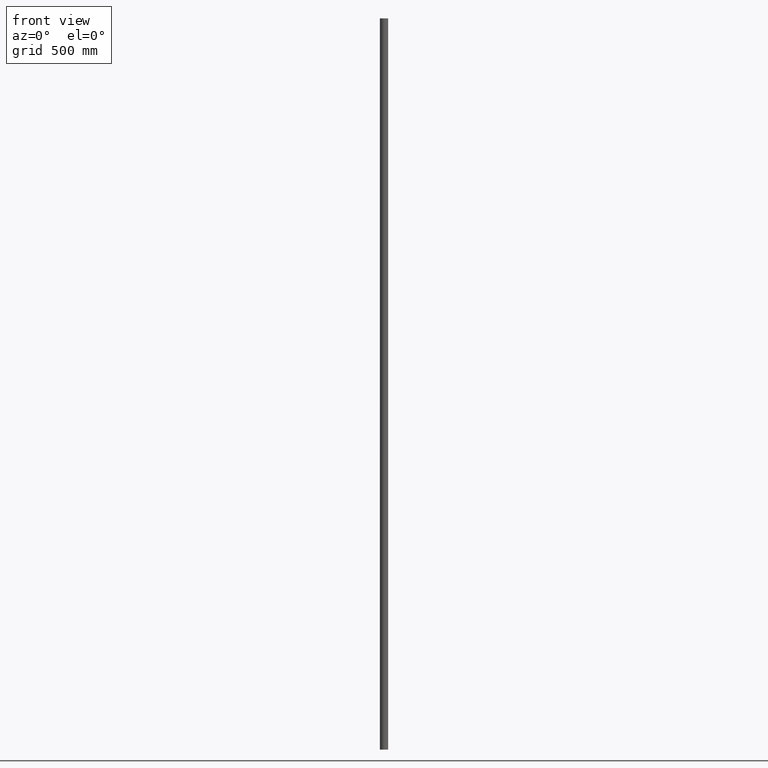
[diagram: clean part render]
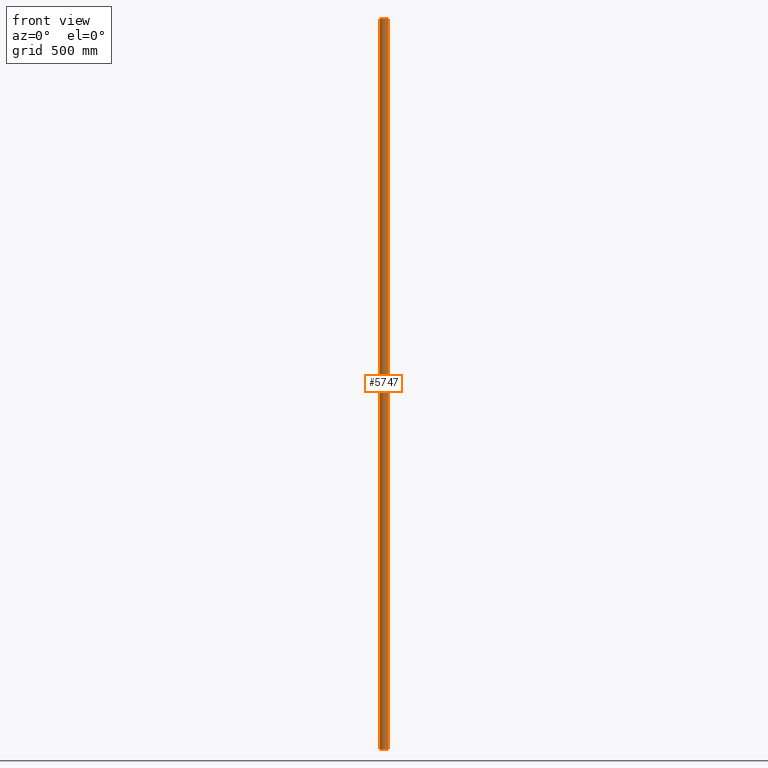
[diagram: same view with one face highlighted and labeled with its STEP entity id]
A machine part, front view. The second image highlights one B-rep face of the part: STEP entity #5747.
In plain terms, the highlighted cylindrical surface (bore or boss wall) has radius 16.85 mm, axis along (-0, -0, -1).
Its self-contained STEP definition (entity closure, byte-faithful):
#307 = CYLINDRICAL_SURFACE ( 'NONE', #9325, 16.85000000000000142 ) ;
#358 = CARTESIAN_POINT ( 'NONE',  ( 0.000000000000000000, 0.000000000000000000, -1500.000000000000000 ) ) ;
#1147 = CARTESIAN_POINT ( 'NONE',  ( 0.000000000000000000, 0.000000000000000000, 1500.000000000000000 ) ) ;
#1513 = ORIENTED_EDGE ( 'NONE', *, *, #6928, .T. ) ;
#1537 = CARTESIAN_POINT ( 'NONE',  ( 0.000000000000000000, 0.000000000000000000, 1500.000000000000000 ) ) ;
#2201 = ORIENTED_EDGE ( 'NONE', *, *, #10927, .F. ) ;
#2345 = FACE_OUTER_BOUND ( 'NONE', #11759, .T. ) ;
#2350 = DIRECTION ( 'NONE',  ( 0.000000000000000000, 0.000000000000000000, 1.000000000000000000 ) ) ;
#2628 = DIRECTION ( 'NONE',  ( -1.000000000000000000, 0.000000000000000000, 0.000000000000000000 ) ) ;
#2737 = EDGE_LOOP ( 'NONE', ( #2201 ) ) ;
#3204 = CIRCLE ( 'NONE', #5278, 16.85000000000000142 ) ;
#4209 = CIRCLE ( 'NONE', #10203, 16.85000000000000142 ) ;
#5278 = AXIS2_PLACEMENT_3D ( 'NONE', #358, #2350, #7983 ) ;
#5747 = ADVANCED_FACE ( 'NONE', ( #9589, #2345 ), #307, .T. ) ;
#6788 = CARTESIAN_POINT ( 'NONE',  ( 16.85000000000000142, 0.000000000000000000, 1500.000000000000000 ) ) ;
#6928 = EDGE_CURVE ( 'NONE', #9306, #9306, #3204, .T. ) ;
#7877 = DIRECTION ( 'NONE',  ( 1.000000000000000000, 0.000000000000000000, 0.000000000000000000 ) ) ;
#7893 = CARTESIAN_POINT ( 'NONE',  ( 16.85000000000000142, 0.000000000000000000, -1500.000000000000000 ) ) ;
#7983 = DIRECTION ( 'NONE',  ( 1.000000000000000000, 0.000000000000000000, 0.000000000000000000 ) ) ;
#8788 = VERTEX_POINT ( 'NONE', #6788 ) ;
#9226 = DIRECTION ( 'NONE',  ( -0.000000000000000000, -0.000000000000000000, -1.000000000000000000 ) ) ;
#9306 = VERTEX_POINT ( 'NONE', #7893 ) ;
#9325 = AXIS2_PLACEMENT_3D ( 'NONE', #1537, #9226, #2628 ) ;
#9589 = FACE_OUTER_BOUND ( 'NONE', #2737, .T. ) ;
#10203 = AXIS2_PLACEMENT_3D ( 'NONE', #1147, #11012, #7877 ) ;
#10927 = EDGE_CURVE ( 'NONE', #8788, #8788, #4209, .T. ) ;
#11012 = DIRECTION ( 'NONE',  ( 0.000000000000000000, 0.000000000000000000, 1.000000000000000000 ) ) ;
#11759 = EDGE_LOOP ( 'NONE', ( #1513 ) ) ;